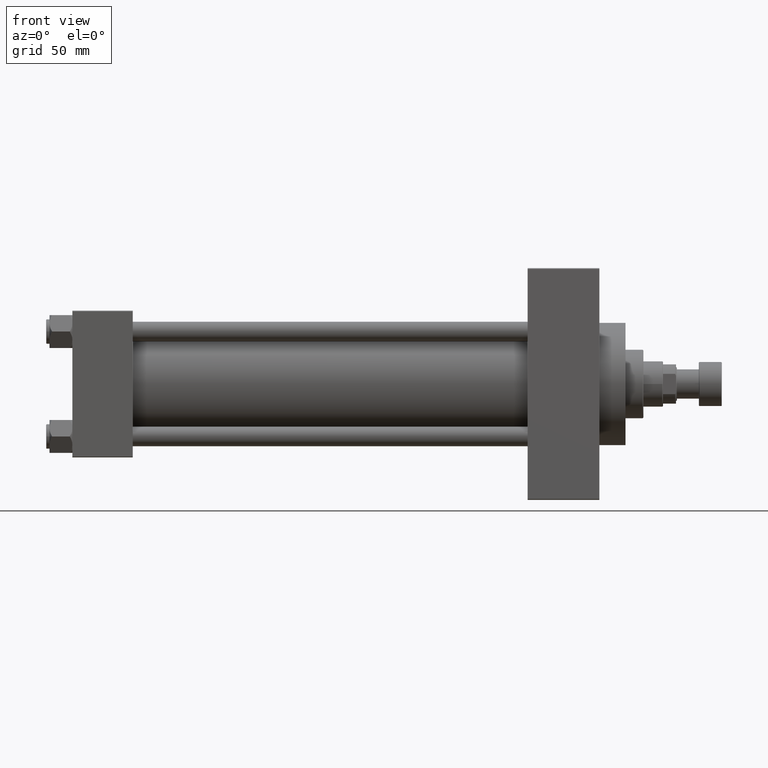
[diagram: clean part render]
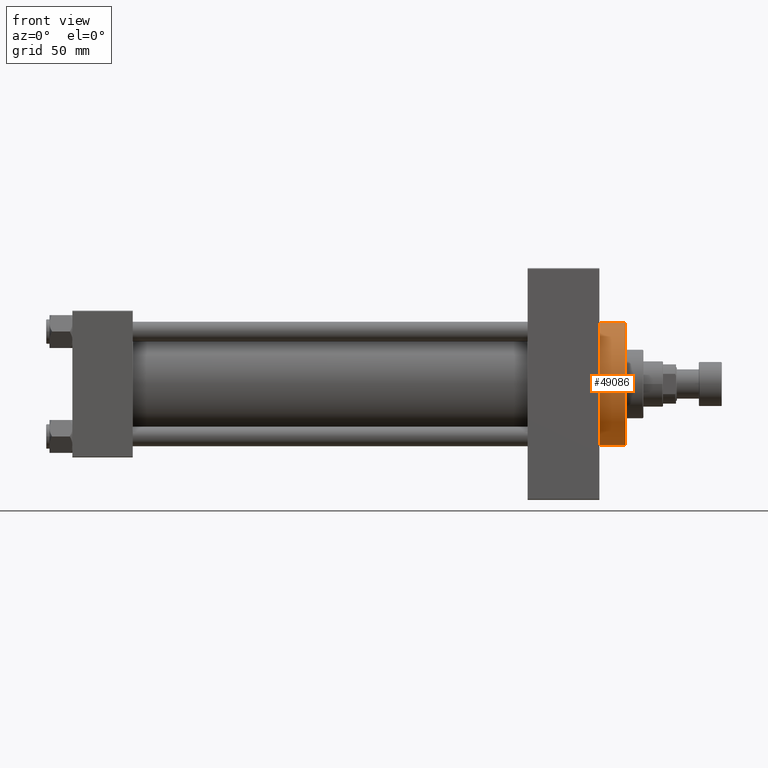
[diagram: same view with one face highlighted and labeled with its STEP entity id]
A machine part, front view. The second image highlights one B-rep face of the part: STEP entity #49086.
In plain terms, the highlighted cylindrical surface (partial cylindrical patch) has radius 37.5 mm, axis along (-1, -0, -0).
Its self-contained STEP definition (entity closure, byte-faithful):
#698 = DIRECTION ( 'NONE',  ( -1.000000000000000000, -0.000000000000000000, -0.000000000000000000 ) ) ;
#763 = DIRECTION ( 'NONE',  ( 1.000000000000000000, 0.000000000000000000, 0.000000000000000000 ) ) ;
#1914 = CARTESIAN_POINT ( 'NONE',  ( 322.9999999999999432, 0.000000000000000000, 37.50000000000000711 ) ) ;
#5775 = CARTESIAN_POINT ( 'NONE',  ( 338.9999999999999432, 0.000000000000000000, 0.000000000000000000 ) ) ;
#6587 = DIRECTION ( 'NONE',  ( -1.000000000000000000, -0.000000000000000000, -0.000000000000000000 ) ) ;
#7851 = LINE ( 'NONE', #16149, #17865 ) ;
#8136 = EDGE_CURVE ( 'NONE', #49730, #19700, #18702, .T. ) ;
#8527 = EDGE_CURVE ( 'NONE', #49730, #16915, #35919, .T. ) ;
#9874 = DIRECTION ( 'NONE',  ( 0.000000000000000000, 0.000000000000000000, 1.000000000000000000 ) ) ;
#11700 = CARTESIAN_POINT ( 'NONE',  ( 338.9999999999999432, 4.592425496802575156E-15, -37.50000000000000711 ) ) ;
#12850 = DIRECTION ( 'NONE',  ( 0.000000000000000000, 0.000000000000000000, -1.000000000000000000 ) ) ;
#13261 = CIRCLE ( 'NONE', #20496, 37.50000000000000711 ) ;
#15345 = EDGE_CURVE ( 'NONE', #16915, #18418, #13261, .T. ) ;
#16149 = CARTESIAN_POINT ( 'NONE',  ( 338.9999999999999432, 4.592425496802575156E-15, -37.50000000000000711 ) ) ;
#16879 = DIRECTION ( 'NONE',  ( 1.000000000000000000, 0.000000000000000000, 0.000000000000000000 ) ) ;
#16915 = VERTEX_POINT ( 'NONE', #1914 ) ;
#17865 = VECTOR ( 'NONE', #26715, 1000.000000000000000 ) ;
#18204 = ORIENTED_EDGE ( 'NONE', *, *, #15345, .T. ) ;
#18418 = VERTEX_POINT ( 'NONE', #47765 ) ;
#18702 = CIRCLE ( 'NONE', #31532, 37.50000000000000711 ) ;
#19700 = VERTEX_POINT ( 'NONE', #11700 ) ;
#20496 = AXIS2_PLACEMENT_3D ( 'NONE', #43543, #763, #39262 ) ;
#20587 = CARTESIAN_POINT ( 'NONE',  ( 338.9999999999999432, 0.000000000000000000, 37.50000000000000711 ) ) ;
#24911 = ORIENTED_EDGE ( 'NONE', *, *, #8527, .T. ) ;
#25715 = FACE_OUTER_BOUND ( 'NONE', #44907, .T. ) ;
#26715 = DIRECTION ( 'NONE',  ( -1.000000000000000000, -0.000000000000000000, -0.000000000000000000 ) ) ;
#27699 = ORIENTED_EDGE ( 'NONE', *, *, #8136, .F. ) ;
#30221 = CYLINDRICAL_SURFACE ( 'NONE', #46896, 37.50000000000000711 ) ;
#31532 = AXIS2_PLACEMENT_3D ( 'NONE', #5775, #16879, #12850 ) ;
#34437 = ORIENTED_EDGE ( 'NONE', *, *, #42985, .F. ) ;
#35919 = LINE ( 'NONE', #20587, #38011 ) ;
#37530 = CARTESIAN_POINT ( 'NONE',  ( 338.9999999999999432, 0.000000000000000000, 0.000000000000000000 ) ) ;
#38011 = VECTOR ( 'NONE', #698, 1000.000000000000000 ) ;
#39262 = DIRECTION ( 'NONE',  ( 0.000000000000000000, 0.000000000000000000, -1.000000000000000000 ) ) ;
#42985 = EDGE_CURVE ( 'NONE', #19700, #18418, #7851, .T. ) ;
#43230 = CARTESIAN_POINT ( 'NONE',  ( 338.9999999999999432, 0.000000000000000000, 37.50000000000000711 ) ) ;
#43543 = CARTESIAN_POINT ( 'NONE',  ( 322.9999999999999432, 0.000000000000000000, 0.000000000000000000 ) ) ;
#44907 = EDGE_LOOP ( 'NONE', ( #34437, #27699, #24911, #18204 ) ) ;
#46896 = AXIS2_PLACEMENT_3D ( 'NONE', #37530, #6587, #9874 ) ;
#47765 = CARTESIAN_POINT ( 'NONE',  ( 322.9999999999999432, 4.592425496802575156E-15, -37.50000000000000711 ) ) ;
#49086 = ADVANCED_FACE ( 'NONE', ( #25715 ), #30221, .T. ) ;
#49730 = VERTEX_POINT ( 'NONE', #43230 ) ;